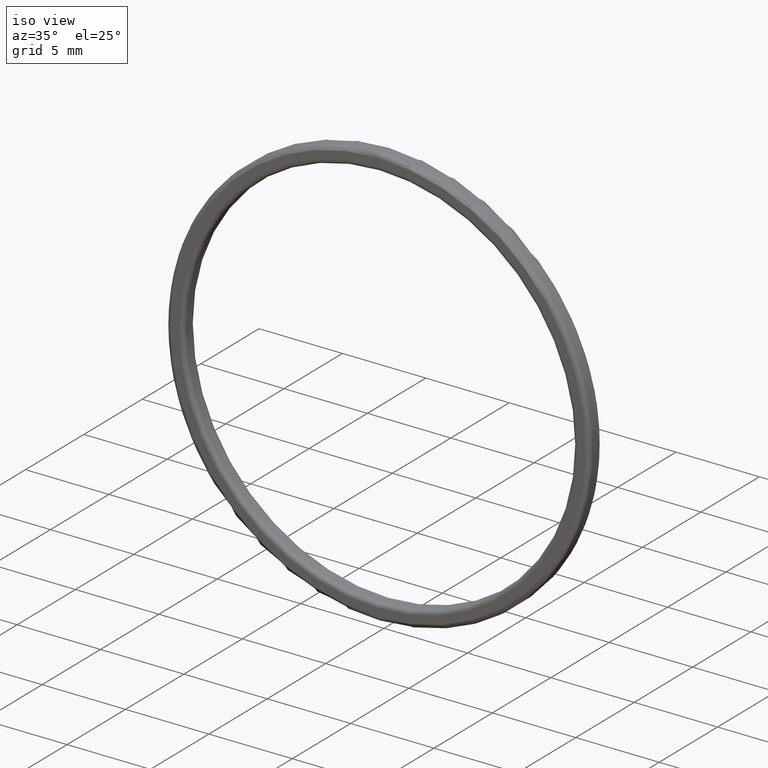
[diagram: clean part render]
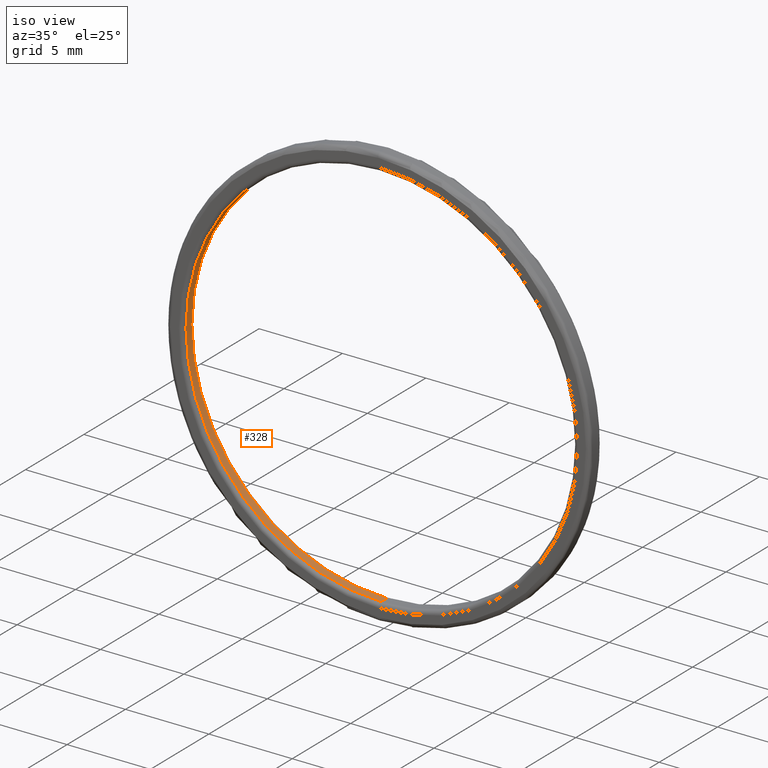
[diagram: same view with one face highlighted and labeled with its STEP entity id]
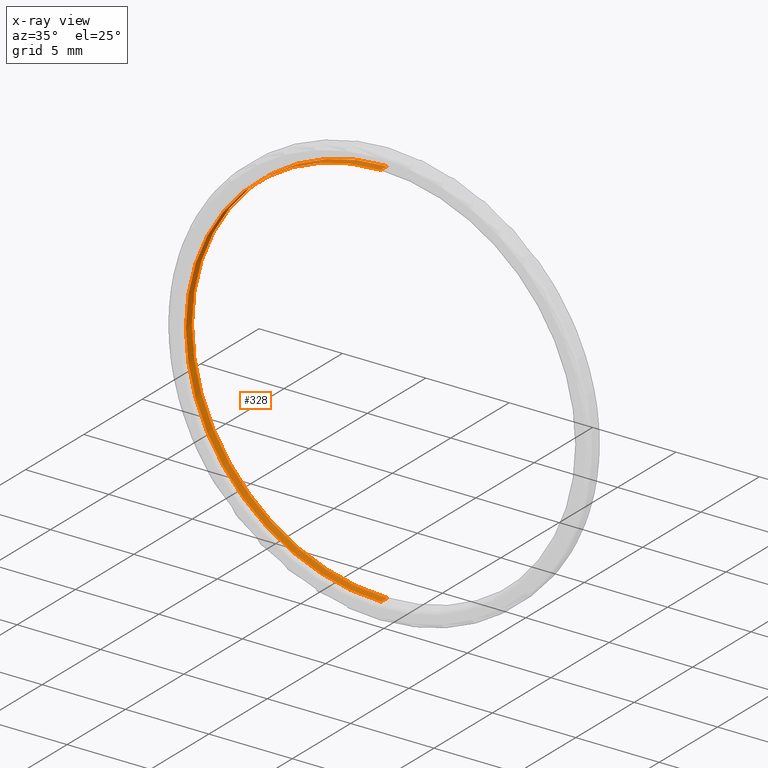
[diagram: x-ray of the same camera — body ghosted, the highlighted face saturated]
A machine part, iso view. The second image highlights one B-rep face of the part: STEP entity #328.
The next image is the same camera in x-ray: the body ghosted, the highlighted face saturated — about 0% of this face is hidden behind the body in this view.
In plain terms, the highlighted cylindrical surface (partial cylindrical patch) has radius 11.7 mm, axis along (-0, 1, -0).
Its self-contained STEP definition (entity closure, byte-faithful):
#2 = ORIENTED_EDGE ( 'NONE', *, *, #273, .T. ) ;
#9 = VERTEX_POINT ( 'NONE', #224 ) ;
#13 = DIRECTION ( 'NONE',  ( -0.0000000000000000000, 1.000000000000000000, -0.0000000000000000000 ) ) ;
#22 = LINE ( 'NONE', #215, #425 ) ;
#40 = EDGE_CURVE ( 'NONE', #251, #177, #22, .T. ) ;
#43 = FACE_OUTER_BOUND ( 'NONE', #316, .T. ) ;
#57 = CIRCLE ( 'NONE', #281, 11.69999999999999929 ) ;
#58 = CIRCLE ( 'NONE', #350, 11.69999999999999929 ) ;
#75 = EDGE_CURVE ( 'NONE', #9, #177, #58, .T. ) ;
#87 = DIRECTION ( 'NONE',  ( 0.0000000000000000000, 0.0000000000000000000, -1.000000000000000000 ) ) ;
#97 = EDGE_CURVE ( 'NONE', #449, #9, #406, .T. ) ;
#101 = DIRECTION ( 'NONE',  ( 0.0000000000000000000, 0.0000000000000000000, 1.000000000000000000 ) ) ;
#126 = DIRECTION ( 'NONE',  ( -0.0000000000000000000, 1.000000000000000000, -0.0000000000000000000 ) ) ;
#132 = CARTESIAN_POINT ( 'NONE',  ( 0.0000000000000000000, -0.2500000000000011102, 11.69999999999999929 ) ) ;
#136 = DIRECTION ( 'NONE',  ( -0.0000000000000000000, 1.000000000000000000, -0.0000000000000000000 ) ) ;
#153 = CARTESIAN_POINT ( 'NONE',  ( 0.0000000000000000000, 0.2499999999999985012, 11.69999999999999929 ) ) ;
#173 = CARTESIAN_POINT ( 'NONE',  ( 0.0000000000000000000, -0.2500000000000011102, 0.0000000000000000000 ) ) ;
#177 = VERTEX_POINT ( 'NONE', #153 ) ;
#211 = CARTESIAN_POINT ( 'NONE',  ( 0.0000000000000000000, 4.847222222222231203, 0.0000000000000000000 ) ) ;
#215 = CARTESIAN_POINT ( 'NONE',  ( 0.0000000000000000000, 4.847222222222231203, 11.69999999999999929 ) ) ;
#224 = CARTESIAN_POINT ( 'NONE',  ( 1.432836755002403087E-15, 0.2499999999999985012, -11.69999999999999929 ) ) ;
#226 = CARTESIAN_POINT ( 'NONE',  ( 0.0000000000000000000, 0.2499999999999985012, 0.0000000000000000000 ) ) ;
#227 = CYLINDRICAL_SURFACE ( 'NONE', #441, 11.69999999999999929 ) ;
#249 = ORIENTED_EDGE ( 'NONE', *, *, #40, .F. ) ;
#251 = VERTEX_POINT ( 'NONE', #132 ) ;
#260 = CARTESIAN_POINT ( 'NONE',  ( 1.432836755002403087E-15, -0.2500000000000011102, -11.69999999999999929 ) ) ;
#273 = EDGE_CURVE ( 'NONE', #251, #449, #57, .T. ) ;
#279 = ORIENTED_EDGE ( 'NONE', *, *, #97, .T. ) ;
#281 = AXIS2_PLACEMENT_3D ( 'NONE', #173, #391, #101 ) ;
#287 = DIRECTION ( 'NONE',  ( 0.0000000000000000000, 0.0000000000000000000, 1.000000000000000000 ) ) ;
#309 = VECTOR ( 'NONE', #411, 1000.000000000000000 ) ;
#316 = EDGE_LOOP ( 'NONE', ( #2, #279, #355, #249 ) ) ;
#328 = ADVANCED_FACE ( 'NONE', ( #43 ), #227, .F. ) ;
#350 = AXIS2_PLACEMENT_3D ( 'NONE', #226, #126, #87 ) ;
#355 = ORIENTED_EDGE ( 'NONE', *, *, #75, .T. ) ;
#374 = CARTESIAN_POINT ( 'NONE',  ( 1.432836755002403087E-15, 4.847222222222231203, -11.69999999999999929 ) ) ;
#391 = DIRECTION ( 'NONE',  ( 0.0000000000000000000, -1.000000000000000000, 0.0000000000000000000 ) ) ;
#406 = LINE ( 'NONE', #374, #309 ) ;
#411 = DIRECTION ( 'NONE',  ( -0.0000000000000000000, 1.000000000000000000, -0.0000000000000000000 ) ) ;
#425 = VECTOR ( 'NONE', #13, 1000.000000000000000 ) ;
#441 = AXIS2_PLACEMENT_3D ( 'NONE', #211, #136, #287 ) ;
#449 = VERTEX_POINT ( 'NONE', #260 ) ;